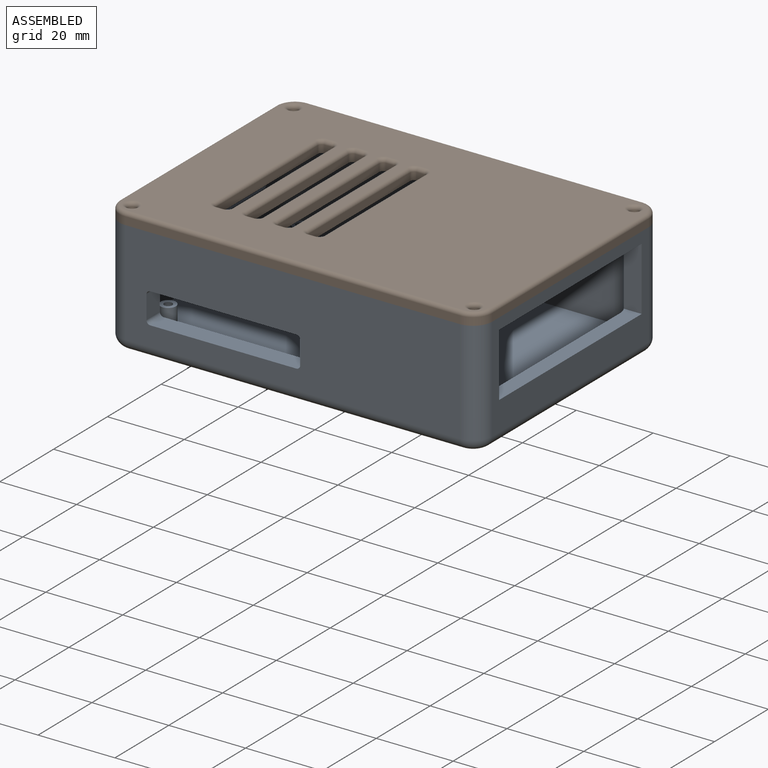
[diagram: assembled view]
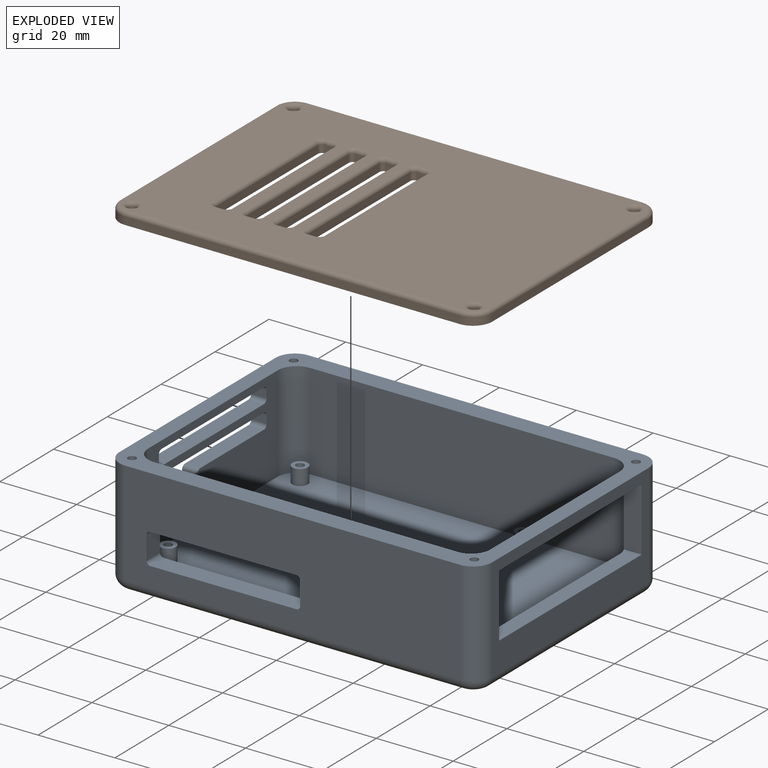
[diagram: exploded view]
GUIDED TOUR — FREECAD ASSEMBLY "Pi-Case"

This assembly has 2 components, labeled P0..P1 below (a component is one placed body or linked part; the same part can appear more than once), held together by 0 modeled joints plus 1 derived contact edge. A joint is a constraint between two components; its type names the relative motion it leaves free:
  CONTACT — a derived adjacency edge — the two components touch in the source model (clearance under 2% of the assembly's diagonal); it is measured from the geometry, not a modeled constraint.
Axis/direction vectors are unit vectors and 'through' points are millimeter coordinates, both in the assembly's world frame.

MATES
  1. CONTACT "contact_0_1": P0 <-> P1, contact direction (0.000, 0.000, 1.000) through (-44.95, -33.78, 30.00) mm (derived from contact, not a modeled constraint)

ASSEMBLY ORDER
  1. P1 — the base component [order verified]
  2. P0 [order verified]
Order-tag legend:
  [order verified] — this step's position reverses a verified removal order: the component was checked to insert without passing through the ones already placed.

Of the 2 components, 2 carry a construction recipe — the FreeCAD feature program (sketches with constraints, then the solid features that consume them) that regenerates the part from scratch, quoted from this document or from the linked companion document it references; the rest are supplied as boundary geometry only. The tour below walks the components in assembly order: each is shown spotlighted twice — in the assembled view, then in the exploded view, where a leader line traces a displaced component back to its assembled socket (components that stay in place when exploded have no leader line; saturated green if recipe-attached, orange if geometry-only; every other component desaturated gray) — followed by its recipe or geometry summary and the mates that hold it.
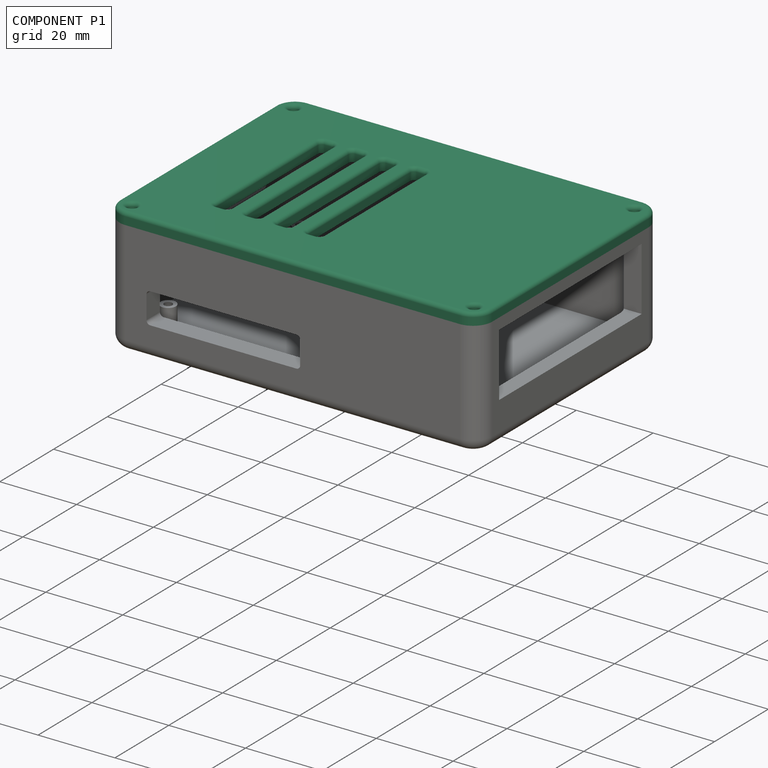
[diagram: component P1 — assembled]
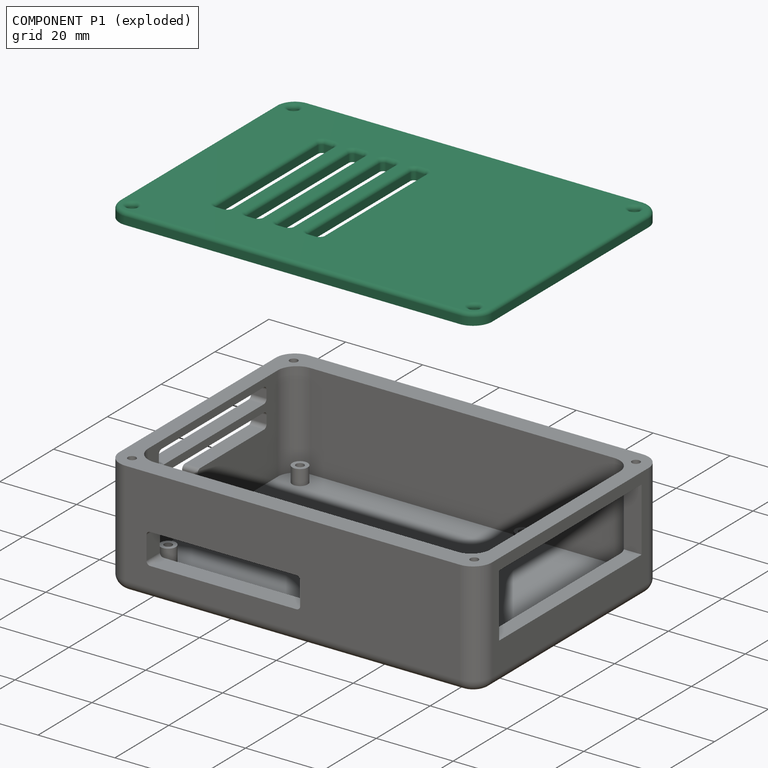
[diagram: component P1 — exploded]
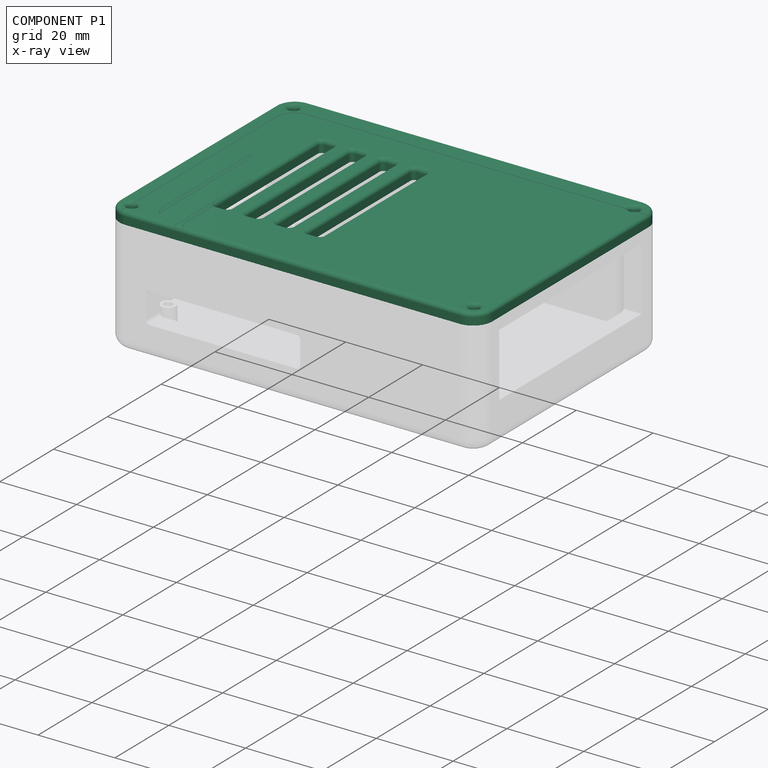
[diagram: component P1 — x-ray view]
COMPONENT P1 — recipe-attached ("Lid", modeled in this document).
Held by: resting contact with P0 (derived edge).
Construction recipe (the document's own serialized feature program — sketch geometry with constraints, then the solid features built on it; lengths are millimeters unless a unit is written):

FEATURE [Sketcher::SketchObject] Sketch010
  ArcFitTolerance = 1e-06
  AttachmentSupport = -> [XY_Plane004]
  FullyConstrained = false
  MakeInternals = false
  MapMode = 5
  sketch-geometry (11):
    g0: LineSegment StartX=-43.5 StartY=-34 StartZ=0 EndX=43.5 EndY=-34 EndZ=0
    g1: LineSegment StartX=48.5 StartY=-29 StartZ=0 EndX=48.5 EndY=29 EndZ=0
    g2: LineSegment StartX=43.5 StartY=34 StartZ=0 EndX=-43.5 EndY=34 EndZ=0
    g3: LineSegment StartX=-48.5 StartY=29 StartZ=0 EndX=-48.5 EndY=-29 EndZ=0
    g4: ArcOfCircle CenterX=-43.5 CenterY=-29 CenterZ=0 NormalX=0 NormalY=0 NormalZ=1 AngleXU=0 Radius=5 StartAngle=3.14159 EndAngle=4.71239
    g5: ArcOfCircle CenterX=43.5 CenterY=-29 CenterZ=0 NormalX=0 NormalY=0 NormalZ=1 AngleXU=0 Radius=5 StartAngle=4.71239 EndAngle=6.28319
    g6: ArcOfCircle CenterX=43.5 CenterY=29 CenterZ=0 NormalX=0 NormalY=0 NormalZ=1 AngleXU=0 Radius=5 StartAngle=4.5e-15 EndAngle=1.5708
    g7: ArcOfCircle CenterX=-43.5 CenterY=29 CenterZ=0 NormalX=0 NormalY=0 NormalZ=1 AngleXU=0 Radius=5 StartAngle=1.5708 EndAngle=3.14159
    g8: GeomPoint [constr] X=48.5 Y=34 Z=0
    g9: GeomPoint [constr] X=0 Y=0 Z=0
    g10: GeomPoint X=-43.8516 Y=-29.3405 Z=0
  constraints (22):
    c: Tangent(g0,g4) = -1.5708
    c: Tangent(g0,g5) = -1.5708
    c: Tangent(g1,g5) = -1.5708
    c: Tangent(g1,g6) = -1.5708
    c: Tangent(g2,g6) = -1.5708
    c: Tangent(g2,g7) = -1.5708
    c: Tangent(g3,g7) = -1.5708
    c: Tangent(g3,g4) = -1.5708
    c: Horizontal(g0)
    c: Horizontal(g2)
    c: Vertical(g1)
    c: Vertical(g3)
    c: Equal(g4,g5)
    c: Equal(g5,g6)
    c: Equal(g6,g7)
    c: Symmetric(g2,g0,g9)
    c: PointOnObject(g8,g1)
    c: PointOnObject(g8,g2)
    c: Distance(g1,g3) = 97
    c: Distance(g0,g2) = 68
    c: Radius(g5) = 5
    c: Coincident(g9,g-1)
FEATURE [PartDesign::Pad] Pad003
  Direction = (0,0,1)
  Length = 3
  Length2 = 10
  Profile = -> Sketch010
  ReferenceAxis = -> Sketch010 [N_Axis]
  Refine = true
  Suppressed = false
  Type = 0
FEATURE [Sketcher::SketchObject] Sketch012
  ArcFitTolerance = 1e-06
  FullyConstrained = true
  MakeInternals = false
  MapMode = 5
  Placement = pos=(0,0,3) rot=(0,0,1;0rad)
  sketch-geometry (49):
    g0: GeomPoint X=-44.5 Y=0 Z=0
    g1: LineSegment StartX=-29.5 StartY=-20 StartZ=0 EndX=-27.5 EndY=-20 EndZ=0
    g2: LineSegment StartX=-26.5 StartY=-19 StartZ=0 EndX=-26.5 EndY=19 EndZ=0
    g3: LineSegment StartX=-27.5 StartY=20 StartZ=0 EndX=-29.5 EndY=20 EndZ=0
    g4: LineSegment StartX=-30.5 StartY=19 StartZ=0 EndX=-30.5 EndY=-19 EndZ=0
    g5: ArcOfCircle CenterX=-29.5 CenterY=-19 CenterZ=0 NormalX=0 NormalY=0 NormalZ=1 AngleXU=0 Radius=1 StartAngle=3.14159 EndAngle=4.71239
    g6: ArcOfCircle CenterX=-27.5 CenterY=-19 CenterZ=0 NormalX=0 NormalY=0 NormalZ=1 AngleXU=0 Radius=1 StartAngle=4.71239 EndAngle=6.28319
    g7: ArcOfCircle CenterX=-27.5 CenterY=19 CenterZ=0 NormalX=0 NormalY=0 NormalZ=1 AngleXU=0 Radius=1 StartAngle=4e-16 EndAngle=1.5708
    g8: ArcOfCircle CenterX=-29.5 CenterY=19 CenterZ=0 NormalX=0 NormalY=0 NormalZ=1 AngleXU=0 Radius=1 StartAngle=1.5708 EndAngle=3.14159
    g9: GeomPoint [constr] X=-26.5 Y=20 Z=0
    g10: GeomPoint [constr] X=-28.5 Y=0 Z=0
    g11: GeomPoint X=-30.5 Y=6e-16 Z=0
    g12: LineSegment StartX=-21.5 StartY=-20 StartZ=0 EndX=-19.5 EndY=-20 EndZ=0
    g13: LineSegment StartX=-18.5 StartY=-19 StartZ=0 EndX=-18.5 EndY=19 EndZ=0
    g14: LineSegment StartX=-19.5 StartY=20 StartZ=0 EndX=-21.5 EndY=20 EndZ=0
    g15: LineSegment StartX=-22.5 StartY=19 StartZ=0 EndX=-22.5 EndY=-19 EndZ=0
    g16: ArcOfCircle CenterX=-21.5 CenterY=-19 CenterZ=0 NormalX=0 NormalY=0 NormalZ=1 AngleXU=0 Radius=1 StartAngle=3.14159 EndAngle=4.71239
    g17: ArcOfCircle CenterX=-19.5 CenterY=-19 CenterZ=0 NormalX=0 NormalY=0 NormalZ=1 AngleXU=0 Radius=1 StartAngle=4.71239 EndAngle=6.28319
    g18: ArcOfCircle CenterX=-19.5 CenterY=19 CenterZ=0 NormalX=0 NormalY=0 NormalZ=1 AngleXU=0 Radius=1 StartAngle=-9e-16 EndAngle=1.5708
    g19: ArcOfCircle CenterX=-21.5 CenterY=19 CenterZ=0 NormalX=0 NormalY=0 NormalZ=1 AngleXU=0 Radius=1 StartAngle=1.5708 EndAngle=3.14159
    g20: GeomPoint [constr] X=-18.5 Y=20 Z=0
    g21: GeomPoint [constr] X=-20.5 Y=0 Z=0
    g22: LineSegment StartX=-13.5 StartY=-20 StartZ=0 EndX=-11.5 EndY=-20 EndZ=0
    g23: LineSegment StartX=-10.5 StartY=-19 StartZ=0 EndX=-10.5 EndY=19 EndZ=0
    g24: LineSegment StartX=-11.5 StartY=20 StartZ=0 EndX=-13.5 EndY=20 EndZ=0
    g25: LineSegment StartX=-14.5 StartY=19 StartZ=0 EndX=-14.5 EndY=-19 EndZ=0
    g26: ArcOfCircle CenterX=-13.5 CenterY=-19 CenterZ=0 NormalX=0 NormalY=0 NormalZ=1 AngleXU=0 Radius=1 StartAngle=3.14159 EndAngle=4.71239
    g27: ArcOfCircle CenterX=-11.5 CenterY=-19 CenterZ=0 NormalX=0 NormalY=0 NormalZ=1 AngleXU=0 Radius=1 StartAngle=4.71239 EndAngle=6.28319
    g28: ArcOfCircle CenterX=-11.5 CenterY=19 CenterZ=0 NormalX=0 NormalY=0 NormalZ=1 AngleXU=0 Radius=1 StartAngle=0 EndAngle=1.5708
    g29: ArcOfCircle CenterX=-13.5 CenterY=19 CenterZ=0 NormalX=0 NormalY=0 NormalZ=1 AngleXU=0 Radius=1 StartAngle=1.5708 EndAngle=3.14159
    g30: GeomPoint [constr] X=-10.5 Y=20 Z=0
    g31: GeomPoint [constr] X=-12.5 Y=0 Z=0
    g32: GeomPoint X=-22.5 Y=3e-16 Z=0
    g33: GeomPoint X=-26.5 Y=1e-16 Z=0
    g34: GeomPoint X=-18.5 Y=5e-16 Z=0
    g35: GeomPoint X=-14.5 Y=-1e-16 Z=0
    g36: LineSegment StartX=-5.5 StartY=-20 StartZ=0 EndX=-3.5 EndY=-20 EndZ=0
    g37: LineSegment StartX=-2.5 StartY=-19 StartZ=0 EndX=-2.5 EndY=19 EndZ=0
    g38: LineSegment StartX=-3.5 StartY=20 StartZ=0 EndX=-5.5 EndY=20 EndZ=0
    g39: LineSegment StartX=-6.5 StartY=19 StartZ=0 EndX=-6.5 EndY=-19 EndZ=0
    g40: ArcOfCircle CenterX=-5.5 CenterY=-19 CenterZ=0 NormalX=0 NormalY=0 NormalZ=1 AngleXU=0 Radius=1 StartAngle=3.14159 EndAngle=4.71239
    g41: ArcOfCircle CenterX=-3.5 CenterY=-19 CenterZ=0 NormalX=0 NormalY=0 NormalZ=1 AngleXU=0 Radius=1 StartAngle=4.71239 EndAngle=6.28319
    g42: ArcOfCircle CenterX=-3.5 CenterY=19 CenterZ=0 NormalX=0 NormalY=0 NormalZ=1 AngleXU=0 Radius=1 StartAngle=0 EndAngle=1.5708
    g43: ArcOfCircle CenterX=-5.5 CenterY=19 CenterZ=0 NormalX=0 NormalY=0 NormalZ=1 AngleXU=0 Radius=1 StartAngle=1.5708 EndAngle=3.14159
    g44: GeomPoint [constr] X=-2.5 Y=20 Z=0
    g45: GeomPoint [constr] X=-4.5 Y=0 Z=0
    g46: GeomPoint X=-6.5 Y=-1.2e-15 Z=0
    g47: GeomPoint X=-10.5 Y=1.4e-15 Z=0
    g48: GeomPoint X=-2.5 Y=1.1e-15 Z=0
  constraints (101):
    c: Symmetric(g-3,g-3,g0)
    c: Tangent(g1,g5) = -1.5708
    c: Tangent(g1,g6) = -1.5708
    c: Tangent(g2,g6) = -1.5708
    c: Tangent(g2,g7) = -1.5708
    c: Tangent(g3,g7) = -1.5708
    c: Tangent(g3,g8) = -1.5708
    c: Tangent(g4,g8) = -1.5708
    c: Tangent(g4,g5) = -1.5708
    c: Horizontal(g1)
    c: Horizontal(g3)
    c: Vertical(g2)
    c: Vertical(g4)
    c: Equal(g5,g6)
    c: Equal(g6,g7)
    c: Equal(g7,g8)
    c: Symmetric(g3,g1,g10)
    c: PointOnObject(g9,g2)
    c: PointOnObject(g9,g3)
    c: Distance(g2,g4) = 4
    c: Distance(g1,g3) = 40
    c: Radius(g6) = 1
    c: PointOnObject(g10,g-1)
    c: Symmetric(g4,g4,g11)
    c: Tangent(g12,g16) = -1.5708
    c: Tangent(g12,g17) = -1.5708
    c: Tangent(g13,g17) = -1.5708
    c: Tangent(g13,g18) = -1.5708
    c: Tangent(g14,g18) = -1.5708
    c: Tangent(g14,g19) = -1.5708
    c: Tangent(g15,g19) = -1.5708
    c: Tangent(g15,g16) = -1.5708
    c: Horizontal(g12)
    c: Horizontal(g14)
    c: Vertical(g13)
    c: Vertical(g15)
    c: Equal(g16,g17)
    c: Equal(g17,g18)
    c: Equal(g18,g19)
    c: Symmetric(g14,g12,g21)
    c: PointOnObject(g20,g13)
    c: PointOnObject(g20,g14)
    c: Distance(g13,g15) = 4
    c: Distance(g12,g14) = 40
    c: Radius(g17) = 1
    c: PointOnObject(g21,g-1)
    c: Tangent(g22,g26) = -1.5708
    c: Tangent(g22,g27) = -1.5708
    c: Tangent(g23,g27) = -1.5708
    c: Tangent(g23,g28) = -1.5708
    c: Tangent(g24,g28) = -1.5708
    c: Tangent(g24,g29) = -1.5708
    c: Tangent(g25,g29) = -1.5708
    c: Tangent(g25,g26) = -1.5708
    c: Horizontal(g22)
    c: Horizontal(g24)
    c: Vertical(g23)
    c: Vertical(g25)
    c: Equal(g26,g27)
    c: Equal(g27,g28)
    c: Equal(g28,g29)
    c: Symmetric(g24,g22,g31)
    c: PointOnObject(g30,g23)
    c: PointOnObject(g30,g24)
    c: Distance(g23,g25) = 4
    c: Distance(g22,g24) = 40
    c: Radius(g27) = 1
    c: PointOnObject(g31,g-1)
    c: Symmetric(g15,g15,g32)
    c: Symmetric(g2,g2,g33)
    c: DistanceX(g33,g32) = 4
    c: Symmetric(g13,g13,g34)
    c: Symmetric(g25,g25,g35)
    c: DistanceX(g34,g35) = 4
    c: Tangent(g36,g40) = -1.5708
    c: Tangent(g36,g41) = -1.5708
    c: Tangent(g37,g41) = -1.5708
    c: Tangent(g37,g42) = -1.5708
    c: Tangent(g38,g42) = -1.5708
    c: Tangent(g38,g43) = -1.5708
    c: Tangent(g39,g43) = -1.5708
    c: Tangent(g39,g40) = -1.5708
    c: Horizontal(g36)
    c: Horizontal(g38)
    c: Vertical(g37)
    c: Vertical(g39)
    c: Equal(g40,g41)
    c: Equal(g41,g42)
    c: Equal(g42,g43)
    c: Symmetric(g38,g36,g45)
    c: PointOnObject(g44,g37)
    c: PointOnObject(g44,g38)
    c: Distance(g37,g39) = 4
    c: Distance(g36,g38) = 40
    c: Radius(g41) = 1
    c: PointOnObject(g45,g-1)
    c: Symmetric(g39,g39,g46)
    c: Symmetric(g23,g23,g47)
    c: DistanceX(g47,g46) = 4
    c: Symmetric(g37,g37,g48)
    c: DistanceX(g0,g11) = 14
FEATURE [PartDesign::Pocket] Pocket004
  BaseFeature = -> Pad003
  Direction = (0,0,-1)
  Length = 5
  Length2 = 5
  Profile = -> Sketch012
  ReferenceAxis = -> Sketch012 [N_Axis]
  Refine = true
  Suppressed = false
  Type = 0
FEATURE [Sketcher::SketchObject] Sketch014
  ArcFitTolerance = 1e-06
  AttachmentSupport = -> [Pocket004]
  ExternalGeometry = -> [Pocket004]
  FullyConstrained = false
  MakeInternals = false
  MapMode = 5
  Placement = pos=(0,0,0) rot=(1,0,0;3.14159rad)
  sketch-geometry (6):
    g0: GeomPoint [constr] X=43.5 Y=29 Z=0
    g1: GeomPoint [constr] X=0 Y=0 Z=0
    g2: Circle CenterX=-44.5356 CenterY=-30.0354 CenterZ=0 NormalX=0 NormalY=0 NormalZ=1 AngleXU=0 Radius=1.2
    g3: Circle CenterX=44.198 CenterY=-29.9761 CenterZ=0 NormalX=0 NormalY=0 NormalZ=1 AngleXU=0 Radius=1.2
    g4: Circle CenterX=44.5354 CenterY=30.0357 CenterZ=0 NormalX=0 NormalY=0 NormalZ=1 AngleXU=0 Radius=1.2
    g5: Circle CenterX=-44.5354 CenterY=30.0356 CenterZ=0 NormalX=0 NormalY=0 NormalZ=1 AngleXU=0 Radius=1.2
  constraints (6):
    c: Coincident(g1,g-1)
    c: Diameter(g2) = 2.4
    c: Diameter(g3) = 2.4
    c: PointOnObject(g-3,g3)
    c: Diameter(g4) = 2.4
    c: Diameter(g5) = 2.4
FEATURE [PartDesign::Hole] Hole002
  BaseFeature = -> Pocket004
  CustomThreadClearance = 0
  Depth = 25
  DepthType = 0
  Diameter = 2.4
  DrillForDepth = false
  DrillPoint = 1
  DrillPointAngle = 118
  HoleCutCountersinkAngle = 90
  HoleCutCustomValues = false
  HoleCutDepth = 0
  HoleCutDiameter = 6.1
  HoleCutType = 0
  ModelThread = false
  Profile = -> Sketch014
  Refine = true
  Suppressed = false
  Tapered = false
  TaperedAngle = 90
  ThreadClass = 0
  ThreadDepth = 25
  ThreadDepthType = 0
  ThreadDirection = 0
  ThreadFit = 0
  ThreadSize = 6
  ThreadType = 1
  Threaded = false
  UseCustomThreadClearance = false
FEATURE [PartDesign::Fillet] Fillet001
  Base = -> Hole002 [Face5]
  BaseFeature = -> Hole002
  Radius = 1
  Refine = true
  SupportTransform = false
  Suppressed = false
  UseAllEdges = false
FEATURE [PartDesign::Body] Body001  label="Lid"
  AllowCompound = false
  Group = -> [Sketch010,Pad003,Sketch012,Pocket004,Sketch014,Hole002,Fillet001]
  Origin = -> Origin004
  Placement = pos=(0,0,30) rot=(0,0,1;0rad)
  Tip = -> Fillet001
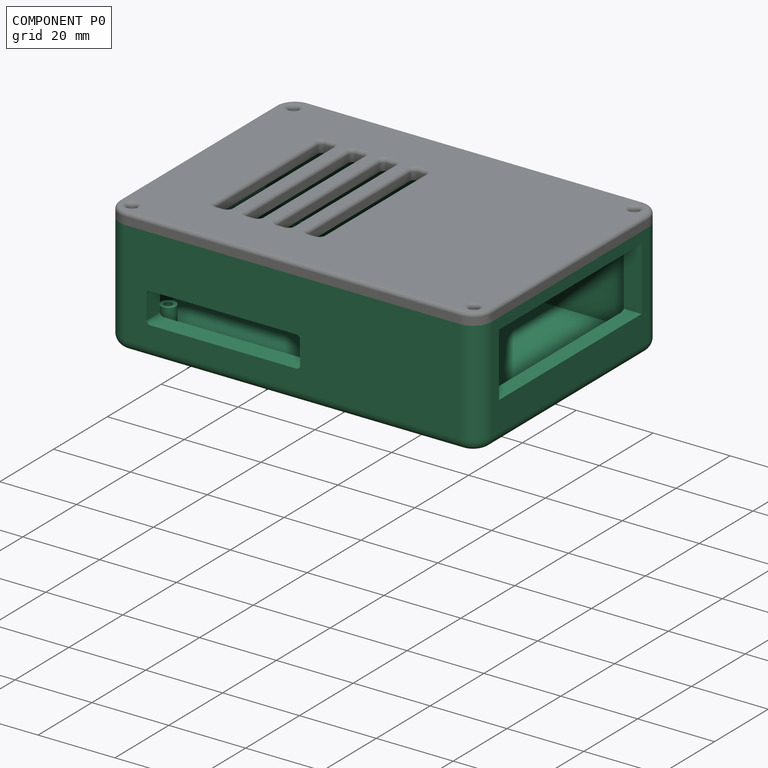
[diagram: component P0 — assembled]
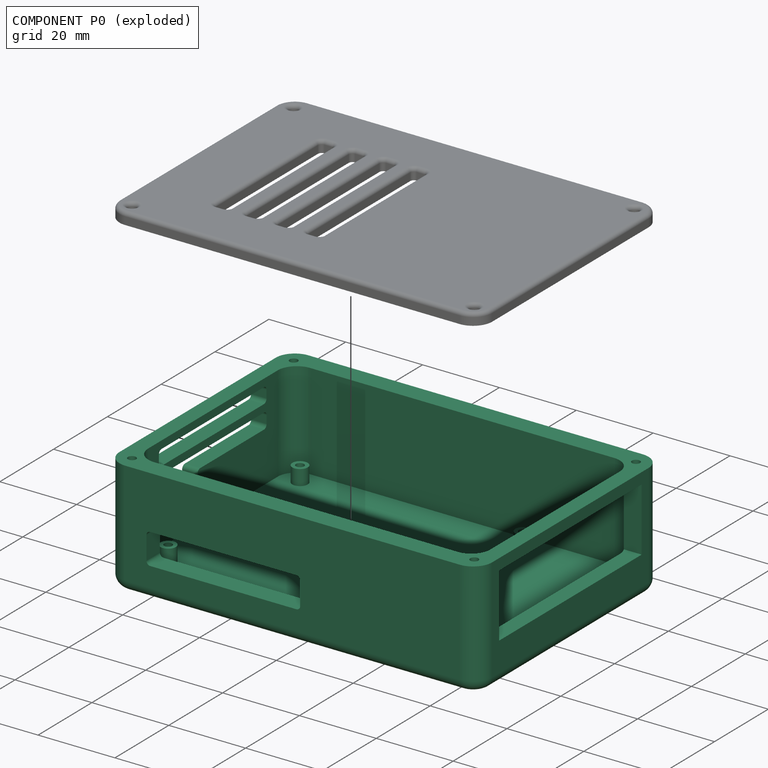
[diagram: component P0 — exploded]
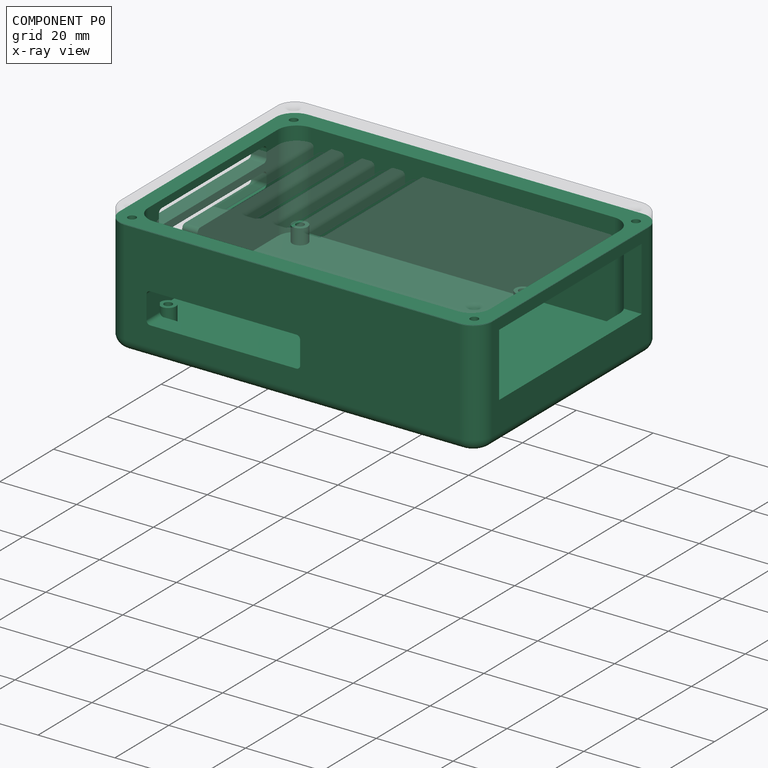
[diagram: component P0 — x-ray view]
COMPONENT P0 — recipe-attached ("Body", modeled in this document).
Held by: resting contact with P1 (derived edge).
Construction recipe (the document's own serialized feature program — sketch geometry with constraints, then the solid features built on it; lengths are millimeters unless a unit is written):

FEATURE [Sketcher::SketchObject] Sketch
  ArcFitTolerance = 1e-06
  AttachmentSupport = -> [XY_Plane002]
  FullyConstrained = true
  MakeInternals = false
  MapMode = 5
  sketch-geometry (10):
    g0: LineSegment StartX=-43.5 StartY=-34 StartZ=0 EndX=43.5 EndY=-34 EndZ=0
    g1: LineSegment StartX=48.5 StartY=-29 StartZ=0 EndX=48.5 EndY=29 EndZ=0
    g2: LineSegment StartX=43.5 StartY=34 StartZ=0 EndX=-43.5 EndY=34 EndZ=0
    g3: LineSegment StartX=-48.5 StartY=29 StartZ=0 EndX=-48.5 EndY=-29 EndZ=0
    g4: ArcOfCircle CenterX=-43.5 CenterY=-29 CenterZ=0 NormalX=0 NormalY=0 NormalZ=1 AngleXU=0 Radius=5 StartAngle=3.14159 EndAngle=4.71239
    g5: ArcOfCircle CenterX=43.5 CenterY=-29 CenterZ=0 NormalX=0 NormalY=0 NormalZ=1 AngleXU=0 Radius=5 StartAngle=4.71239 EndAngle=6.28319
    g6: ArcOfCircle CenterX=43.5 CenterY=29 CenterZ=0 NormalX=0 NormalY=0 NormalZ=1 AngleXU=0 Radius=5 StartAngle=4.3e-15 EndAngle=1.5708
    g7: ArcOfCircle CenterX=-43.5 CenterY=29 CenterZ=0 NormalX=0 NormalY=0 NormalZ=1 AngleXU=0 Radius=5 StartAngle=1.5708 EndAngle=3.14159
    g8: GeomPoint [constr] X=48.5 Y=34 Z=0
    g9: GeomPoint [constr] X=0 Y=0 Z=0
  constraints (22):
    c: Tangent(g0,g4) = -1.5708
    c: Tangent(g0,g5) = -1.5708
    c: Tangent(g1,g5) = -1.5708
    c: Tangent(g1,g6) = -1.5708
    c: Tangent(g2,g6) = -1.5708
    c: Tangent(g2,g7) = -1.5708
    c: Tangent(g3,g7) = -1.5708
    c: Tangent(g3,g4) = -1.5708
    c: Horizontal(g0)
    c: Horizontal(g2)
    c: Vertical(g1)
    c: Vertical(g3)
    c: Equal(g4,g5)
    c: Equal(g5,g6)
    c: Equal(g6,g7)
    c: Symmetric(g2,g0,g9)
    c: PointOnObject(g8,g1)
    c: PointOnObject(g8,g2)
    c: Distance(g1,g3) = 97
    c: Distance(g0,g2) = 68
    c: Radius(g5) = 5
    c: Coincident(g9,g-1)
FEATURE [PartDesign::Pad] Pad  label="Base"
  Direction = (0,0,1)
  Length = 5
  Length2 = 10
  Profile = -> Sketch
  ReferenceAxis = -> Sketch [N_Axis]
  Refine = true
  Suppressed = false
  Type = 0
FEATURE [PartDesign::Fillet] Fillet
  Base = -> Pad [Face9]
  BaseFeature = -> Pad
  Radius = 3
  Refine = true
  SupportTransform = false
  Suppressed = false
  UseAllEdges = false
FEATURE [Sketcher::SketchObject] Sketch001
  ArcFitTolerance = 1e-06
  AttachmentSupport = -> [Fillet]
  FullyConstrained = false
  MakeInternals = false
  MapMode = 5
  Placement = pos=(0,0,5) rot=(0,0,1;0rad)
  sketch-geometry (4):
    g0: Circle CenterX=18.9912 CenterY=24.5 CenterZ=0 NormalX=0 NormalY=0 NormalZ=1 AngleXU=0 Radius=2
    g1: Circle CenterX=18.9912 CenterY=-24.5 CenterZ=0 NormalX=0 NormalY=0 NormalZ=1 AngleXU=0 Radius=2
    g2: Circle CenterX=-39.0088 CenterY=-24.5 CenterZ=0 NormalX=0 NormalY=0 NormalZ=1 AngleXU=0 Radius=2
    g3: Circle CenterX=-39.0088 CenterY=24.5 CenterZ=0 NormalX=0 NormalY=0 NormalZ=1 AngleXU=0 Radius=2
  constraints (9):
    c: Diameter(g0) = 4
    c: Diameter(g1) = 4
    c: Diameter(g2) = 4
    c: Diameter(g3) = 4
    c: Symmetric(g3,g2,g-1)
    c: Symmetric(g1,g0,g-1)
    c: DistanceX(g3,g0) = 58
    c: DistanceY(g1,g0) = 49
    c: DistanceY(g2,g3) = 49
FEATURE [Sketcher::SketchObject] Sketch002
  ArcFitTolerance = 1e-06
  AttachmentSupport = -> [Fillet]
  FullyConstrained = true
  MakeInternals = false
  MapMode = 5
  Placement = pos=(0,0,5) rot=(0,0,1;0rad)
  sketch-geometry (20):
    g0: LineSegment StartX=-43.5 StartY=-34 StartZ=0 EndX=43.5 EndY=-34 EndZ=0
    g1: LineSegment StartX=48.5 StartY=-29 StartZ=0 EndX=48.5 EndY=29 EndZ=0
    g2: LineSegment StartX=43.5 StartY=34 StartZ=0 EndX=-43.5 EndY=34 EndZ=0
    g3: LineSegment StartX=-48.5 StartY=29 StartZ=0 EndX=-48.5 EndY=-29 EndZ=0
    g4: ArcOfCircle CenterX=-43.5 CenterY=-29 CenterZ=0 NormalX=0 NormalY=0 NormalZ=1 AngleXU=0 Radius=5 StartAngle=3.14159 EndAngle=4.71239
    g5: ArcOfCircle CenterX=43.5 CenterY=-29 CenterZ=0 NormalX=0 NormalY=0 NormalZ=1 AngleXU=0 Radius=5 StartAngle=4.71239 EndAngle=6.28319
    g6: ArcOfCircle CenterX=43.5 CenterY=29 CenterZ=0 NormalX=0 NormalY=0 NormalZ=1 AngleXU=0 Radius=5 StartAngle=0 EndAngle=1.5708
    g7: ArcOfCircle CenterX=-43.5 CenterY=29 CenterZ=0 NormalX=0 NormalY=0 NormalZ=1 AngleXU=0 Radius=5 StartAngle=1.5708 EndAngle=3.14159
    g8: GeomPoint [constr] X=48.5 Y=34 Z=0
    g9: GeomPoint [constr] X=0 Y=0 Z=0
    g10: LineSegment StartX=-39.5 StartY=-29 StartZ=0 EndX=39.5 EndY=-29 EndZ=0
    g11: LineSegment StartX=44.5 StartY=-24 StartZ=0 EndX=44.5 EndY=24 EndZ=0
    g12: LineSegment StartX=39.5 StartY=29 StartZ=0 EndX=-39.5 EndY=29 EndZ=0
    g13: LineSegment StartX=-44.5 StartY=24 StartZ=0 EndX=-44.5 EndY=-24 EndZ=0
    g14: ArcOfCircle CenterX=-39.5 CenterY=-24 CenterZ=0 NormalX=0 NormalY=0 NormalZ=1 AngleXU=0 Radius=5 StartAngle=3.14159 EndAngle=4.71239
    g15: ArcOfCircle CenterX=39.5 CenterY=-24 CenterZ=0 NormalX=0 NormalY=0 NormalZ=1 AngleXU=0 Radius=5 StartAngle=4.71239 EndAngle=6.28319
    g16: ArcOfCircle CenterX=39.5 CenterY=24 CenterZ=0 NormalX=0 NormalY=0 NormalZ=1 AngleXU=0 Radius=5 StartAngle=-9e-16 EndAngle=1.5708
    g17: ArcOfCircle CenterX=-39.5 CenterY=24 CenterZ=0 NormalX=0 NormalY=0 NormalZ=1 AngleXU=0 Radius=5 StartAngle=1.5708 EndAngle=3.14159
    g18: GeomPoint [constr] X=44.5 Y=29 Z=0
    g19: GeomPoint [constr] X=0 Y=0 Z=0
  constraints (44):
    c: Tangent(g0,g4) = -1.5708
    c: Tangent(g0,g5) = -1.5708
    c: Tangent(g1,g5) = -1.5708
    c: Tangent(g1,g6) = -1.5708
    c: Tangent(g2,g6) = -1.5708
    c: Tangent(g2,g7) = -1.5708
    c: Tangent(g3,g7) = -1.5708
    c: Tangent(g3,g4) = -1.5708
    c: Horizontal(g0)
    c: Horizontal(g2)
    c: Vertical(g1)
    c: Vertical(g3)
    c: Equal(g4,g5)
    c: Equal(g5,g6)
    c: Equal(g6,g7)
    c: Symmetric(g2,g0,g9)
    c: PointOnObject(g8,g1)
    c: PointOnObject(g8,g2)
    c: Distance(g1,g3) = 97
    c: Distance(g0,g2) = 68
    c: Radius(g5) = 5
    c: Coincident(g9,g-1)
    c: Tangent(g10,g14) = -1.5708
    c: Tangent(g10,g15) = -1.5708
    c: Tangent(g11,g15) = -1.5708
    c: Tangent(g11,g16) = -1.5708
    c: Tangent(g12,g16) = -1.5708
    c: Tangent(g12,g17) = -1.5708
    c: Tangent(g13,g17) = -1.5708
    c: Tangent(g13,g14) = -1.5708
    c: Horizontal(g10)
    c: Horizontal(g12)
    c: Vertical(g11)
    c: Vertical(g13)
    c: Equal(g14,g15)
    c: Equal(g15,g16)
    c: Equal(g16,g17)
    c: Symmetric(g12,g10,g19)
    c: PointOnObject(g18,g11)
    c: PointOnObject(g18,g12)
    c: Distance(g11,g13) = 89
    c: Distance(g10,g12) = 58
    c: Radius(g15) = 5
    c: Coincident(g19,g9)
FEATURE [PartDesign::Pad] Pad001  label="Walls"
  BaseFeature = -> Fillet
  Direction = (0,0,1)
  Length = 25
  Length2 = 10
  Profile = -> Sketch002
  ReferenceAxis = -> Sketch002 [N_Axis]
  Refine = true
  Suppressed = false
  Type = 0
FEATURE [Sketcher::SketchObject] Sketch003
  ArcFitTolerance = 1e-06
  AttachmentSupport = -> [Pad001]
  FullyConstrained = true
  MakeInternals = false
  MapMode = 5
  Placement = pos=(48.5,0,0) rot=(0.57735,0.57735,0.57735;2.0944rad)
  sketch-geometry (5):
    g0: LineSegment StartX=-26.5 StartY=10.6 StartZ=0 EndX=26.5 EndY=10.6 EndZ=0
    g1: LineSegment StartX=26.5 StartY=10.6 StartZ=0 EndX=26.5 EndY=27.1 EndZ=0
    g2: LineSegment StartX=26.5 StartY=27.1 StartZ=0 EndX=-26.5 EndY=27.1 EndZ=0
    g3: LineSegment StartX=-26.5 StartY=27.1 StartZ=0 EndX=-26.5 EndY=10.6 EndZ=0
    g4: GeomPoint [constr] X=0 Y=18.85 Z=0
  constraints (13):
    c: Coincident(g0,g1)
    c: Coincident(g1,g2)
    c: Coincident(g2,g3)
    c: Coincident(g3,g0)
    c: Horizontal(g0)
    c: Horizontal(g2)
    c: Vertical(g1)
    c: Vertical(g3)
    c: Symmetric(g2,g0,g4)
    c: Distance(g1,g3) = 53
    c: Distance(g0,g2) = 16.5
    c: PointOnObject(g4,g-2)
    c: DistanceY(g-1,g4) = 18.85
FEATURE [PartDesign::Pocket] Pocket  label="Back Ports"
  BaseFeature = -> Pad001
  Direction = (-1,0,0)
  Length = 5
  Length2 = 5
  Profile = -> Sketch003
  ReferenceAxis = -> Sketch003 [N_Axis]
  Refine = true
  Suppressed = false
  Type = 0
FEATURE [PartDesign::Pad] Pad002  label="Stilts"
  BaseFeature = -> Pocket
  Direction = (0,0,1)
  Length = 4
  Length2 = 10
  Profile = -> Sketch001
  ReferenceAxis = -> Sketch001 [N_Axis]
  Refine = true
  Suppressed = false
  Type = 0
FEATURE [Sketcher::SketchObject] Sketch004
  ArcFitTolerance = 1e-06
  AttachmentSupport = -> [Pad002]
  ExternalGeometry = -> [Pad002]
  FullyConstrained = true
  MakeInternals = false
  MapMode = 5
  Placement = pos=(0,0,9) rot=(0,0,1;0rad)
  sketch-geometry (4):
    g0: Circle CenterX=-39.0088 CenterY=24.5 CenterZ=0 NormalX=0 NormalY=0 NormalZ=1 AngleXU=0 Radius=0.75
    g1: Circle CenterX=18.9912 CenterY=24.5 CenterZ=0 NormalX=0 NormalY=0 NormalZ=1 AngleXU=0 Radius=0.75
    g2: Circle CenterX=18.9912 CenterY=-24.5 CenterZ=0 NormalX=0 NormalY=0 NormalZ=1 AngleXU=0 Radius=0.75
    g3: Circle CenterX=-39.0088 CenterY=-24.5 CenterZ=0 NormalX=0 NormalY=0 NormalZ=1 AngleXU=0 Radius=0.75
  constraints (8):
    c: Diameter(g0) = 1.5
    c: Coincident(g0,g-3)
    c: Diameter(g1) = 1.5
    c: Coincident(g1,g-4)
    c: Diameter(g2) = 1.5
    c: Coincident(g2,g-5)
    c: Diameter(g3) = 1.5
    c: Coincident(g3,g-6)
FEATURE [PartDesign::Hole] Hole  label="Board Holes"
  BaseFeature = -> Pad002
  CustomThreadClearance = 0
  Depth = 6
  DepthType = 0
  Diameter = 2.1
  DrillForDepth = false
  DrillPoint = 1
  DrillPointAngle = 118
  HoleCutCountersinkAngle = 90
  HoleCutCustomValues = false
  HoleCutDepth = 0
  HoleCutDiameter = 6.1
  HoleCutType = 0
  ModelThread = false
  Profile = -> Sketch004
  Refine = true
  Suppressed = false
  Tapered = false
  TaperedAngle = 90
  ThreadClass = 0
  ThreadDepth = 6
  ThreadDepthType = 0
  ThreadDirection = 0
  ThreadFit = 0
  ThreadSize = 0
  ThreadType = 0
  Threaded = false
  UseCustomThreadClearance = false
FEATURE [Sketcher::SketchObject] Sketch005
  ArcFitTolerance = 1e-06
  AttachmentSupport = -> [Hole]
  ExternalGeometry = -> [Hole]
  FullyConstrained = false
  MakeInternals = false
  MapMode = 5
  Placement = pos=(0,0,30) rot=(0,0,1;0rad)
  sketch-geometry (4):
    g0: Circle CenterX=-44.5355 CenterY=-30.0355 CenterZ=0 NormalX=0 NormalY=0 NormalZ=1 AngleXU=0 Radius=1.05
    g1: Circle CenterX=44.5345 CenterY=-30.0345 CenterZ=0 NormalX=0 NormalY=0 NormalZ=1 AngleXU=0 Radius=1.05
    g2: Circle CenterX=44.5355 CenterY=30.0355 CenterZ=0 NormalX=0 NormalY=0 NormalZ=1 AngleXU=0 Radius=1.05
    g3: Circle CenterX=-44.5355 CenterY=30.0355 CenterZ=0 NormalX=0 NormalY=0 NormalZ=1 AngleXU=0 Radius=1.05
  constraints (6):
    c: Diameter(g0) = 2.1
    c: Diameter(g1) = 2.1
    c: Diameter(g2) = 2.1
    c: Diameter(g3) = 2.1
    c: DistanceX(g0,g1) = 89.07
    c: DistanceY(g1,g2) = 60.07
FEATURE [Sketcher::SketchObject] Sketch006
  ArcFitTolerance = 1e-06
  AttachmentSupport = -> [Hole]
  FullyConstrained = false
  MakeInternals = false
  MapMode = 5
  Placement = pos=(-48.5,0,0) rot=(0.57735,-0.57735,-0.57735;2.0944rad)
  sketch-geometry (11):
    g0: LineSegment StartX=-5 StartY=-0.312917 StartZ=0 EndX=5 EndY=-0.312917 EndZ=0
    g1: LineSegment StartX=6 StartY=0.687083 StartZ=0 EndX=6 EndY=8.68708 EndZ=0
    g2: LineSegment StartX=5 StartY=9.68708 StartZ=0 EndX=-5 EndY=9.68708 EndZ=0
    g3: LineSegment StartX=-6 StartY=8.68708 StartZ=0 EndX=-6 EndY=0.687083 EndZ=0
    g4: ArcOfCircle CenterX=-5 CenterY=0.687083 CenterZ=0 NormalX=0 NormalY=0 NormalZ=1 AngleXU=0 Radius=1 StartAngle=3.14159 EndAngle=4.71239
    g5: ArcOfCircle CenterX=5 CenterY=0.687083 CenterZ=0 NormalX=0 NormalY=0 NormalZ=1 AngleXU=0 Radius=1 StartAngle=4.71239 EndAngle=6.28319
    g6: ArcOfCircle CenterX=5 CenterY=8.68708 CenterZ=0 NormalX=0 NormalY=0 NormalZ=1 AngleXU=0 Radius=1 StartAngle=1e-16 EndAngle=1.5708
    g7: ArcOfCircle CenterX=-5 CenterY=8.68708 CenterZ=0 NormalX=0 NormalY=0 NormalZ=1 AngleXU=0 Radius=1 StartAngle=1.5708 EndAngle=3.14159
    g8: GeomPoint [constr] X=6 Y=9.68708 Z=0
    g9: GeomPoint [constr] X=0 Y=5.00565 Z=0
    g10: GeomPoint [constr] X=5 Y=9.68708 Z=0
  constraints (22):
    c: Tangent(g0,g4) = -1.5708
    c: Tangent(g0,g5) = -1.5708
    c: Tangent(g1,g5) = -1.5708
    c: Tangent(g1,g6) = -1.5708
    c: Tangent(g2,g6) = -1.5708
    c: Tangent(g2,g7) = -1.5708
    c: Tangent(g3,g7) = -1.5708
    c: Tangent(g3,g4) = -1.5708
    c: Horizontal(g0)
    c: Horizontal(g2)
    c: Vertical(g1)
    c: Vertical(g3)
    c: Equal(g5,g6)
    c: Equal(g6,g7)
    c: PointOnObject(g8,g1)
    c: PointOnObject(g8,g2)
    c: Distance(g1,g3) = 12
    c: Distance(g0,g2) = 10
    c: Radius(g5) = 1
    c: PointOnObject(g9,g-2)
    c: Symmetric(g5,g4,g-2)
    c: Coincident(g10,g2)
FEATURE [PartDesign::Pocket] Pocket001  label="SD Card Pocket"
  BaseFeature = -> Hole
  Direction = (1,0,0)
  Length = 10
  Length2 = 5
  Profile = -> Sketch006
  ReferenceAxis = -> Sketch006 [N_Axis]
  Refine = true
  Suppressed = false
  Type = 0
FEATURE [Sketcher::SketchObject] Sketch007
  ArcFitTolerance = 1e-06
  AttachmentSupport = -> [Pocket001]
  ExternalGeometry = -> [Pocket001]
  FullyConstrained = false
  MakeInternals = false
  MapMode = 5
  Placement = pos=(-48.5,0,0) rot=(0.57735,-0.57735,-0.57735;2.0944rad)
  sketch-geometry (37):
    g0: LineSegment StartX=20.0788 StartY=18.9948 StartZ=0 EndX=20.0788 EndY=21 EndZ=0
    g1: LineSegment StartX=19.0788 StartY=22 StartZ=0 EndX=-18.9212 EndY=22 EndZ=0
    g2: LineSegment StartX=-19.9212 StartY=21 StartZ=0 EndX=-19.9212 EndY=18.9912 EndZ=0
    g3: ArcOfCircle CenterX=-18.9212 CenterY=18.9912 CenterZ=0 NormalX=0 NormalY=0 NormalZ=1 AngleXU=0 Radius=1 StartAngle=3.14159 EndAngle=4.55954
    g4: ArcOfCircle CenterX=19.0788 CenterY=18.9948 CenterZ=0 NormalX=0 NormalY=0 NormalZ=1 AngleXU=0 Radius=1 StartAngle=4.7111 EndAngle=6.28319
    g5: ArcOfCircle CenterX=19.0788 CenterY=21 CenterZ=0 NormalX=0 NormalY=0 NormalZ=1 AngleXU=0 Radius=1 StartAngle=1.3e-15 EndAngle=1.5708
    g6: ArcOfCircle CenterX=-18.9212 CenterY=21 CenterZ=0 NormalX=0 NormalY=0 NormalZ=1 AngleXU=0 Radius=1 StartAngle=1.5708 EndAngle=3.14159
    g7: GeomPoint [constr] X=20.0788 Y=22 Z=0
    g8: GeomPoint [constr] X=0.00265967 Y=20.0014 Z=0
    g9: LineSegment StartX=-18.8903 StartY=24 StartZ=0 EndX=19.1097 EndY=24 EndZ=0
    g10: LineSegment StartX=20.1097 StartY=25 StartZ=0 EndX=20.1097 EndY=27 EndZ=0
    g11: LineSegment StartX=19.1097 StartY=28 StartZ=0 EndX=-18.8903 EndY=28 EndZ=0
    g12: LineSegment StartX=-19.8903 StartY=27 StartZ=0 EndX=-19.8903 EndY=25 EndZ=0
    g13: ArcOfCircle CenterX=-18.8903 CenterY=25 CenterZ=0 NormalX=0 NormalY=0 NormalZ=1 AngleXU=0 Radius=1 StartAngle=3.14159 EndAngle=4.71239
    g14: ArcOfCircle CenterX=19.1097 CenterY=25 CenterZ=0 NormalX=0 NormalY=0 NormalZ=1 AngleXU=0 Radius=1 StartAngle=4.71239 EndAngle=6.28319
    g15: ArcOfCircle CenterX=19.1097 CenterY=27 CenterZ=0 NormalX=0 NormalY=0 NormalZ=1 AngleXU=0 Radius=1 StartAngle=1.1e-15 EndAngle=1.5708
    g16: ArcOfCircle CenterX=-18.8903 CenterY=27 CenterZ=0 NormalX=0 NormalY=0 NormalZ=1 AngleXU=0 Radius=1 StartAngle=1.5708 EndAngle=3.14159
    g17: GeomPoint [constr] X=20.1097 Y=28 Z=0
    g18: GeomPoint [constr] X=0.109708 Y=26 Z=0
    g19: GeomPoint X=24.15 Y=9 Z=0
    g20: LineSegment StartX=19.0775 StartY=17.9948 StartZ=0 EndX=13.7513 EndY=18.0016 EndZ=0
    g21: LineSegment StartX=12.75 StartY=17.0016 StartZ=0 EndX=12.75 EndY=12.0029 EndZ=0
    g22: LineSegment StartX=11.75 StartY=11.0029 StartZ=0 EndX=6.75 EndY=11.0029 EndZ=0
    g23: LineSegment StartX=5.75 StartY=12.0029 StartZ=0 EndX=5.75 EndY=17.0029 EndZ=0
    g24: LineSegment StartX=4.75 StartY=18.0029 StartZ=0 EndX=-19.0735 EndY=18.0029 EndZ=0
    g25: GeomPoint X=9.25 Y=11.0029 Z=0
    g26: GeomPoint X=9.25 Y=18.0029 Z=0
    g27: ArcOfCircle CenterX=6.75 CenterY=12.0029 CenterZ=0 NormalX=0 NormalY=0 NormalZ=1 AngleXU=0 Radius=1 StartAngle=3.14159 EndAngle=4.71239
    g28: GeomPoint [constr] X=5.75 Y=11.0029 Z=0
    g29: ArcOfCircle CenterX=11.75 CenterY=12.0029 CenterZ=0 NormalX=0 NormalY=0 NormalZ=1 AngleXU=0 Radius=1 StartAngle=4.71239 EndAngle=6.28319
    g30: GeomPoint [constr] X=12.75 Y=11.0029 Z=0
    g31: GeomPoint X=9.25 Y=9 Z=0
    g32: ArcOfCircle CenterX=13.75 CenterY=17.0016 CenterZ=0 NormalX=0 NormalY=0 NormalZ=1 AngleXU=0 Radius=1 StartAngle=1.56951 EndAngle=3.14159
    g33: GeomPoint [constr] X=12.75 Y=18.0029 Z=0
    g34: ArcOfCircle CenterX=4.75 CenterY=17.0029 CenterZ=0 NormalX=0 NormalY=0 NormalZ=1 AngleXU=0 Radius=1 StartAngle=5e-16 EndAngle=1.5708
    g35: GeomPoint [constr] X=5.75 Y=18.0029 Z=0
    g36: GeomPoint X=0 Y=30 Z=0
  constraints (78):
    c: Tangent(g0,g4) = -1.5708
    c: Tangent(g0,g5) = -1.5708
    c: Tangent(g1,g5) = -1.5708
    c: Tangent(g1,g6) = -1.5708
    c: Tangent(g2,g6) = -1.5708
    c: Tangent(g2,g3) = -1.5708
    c: Horizontal(g1)
    c: Vertical(g0)
    c: Vertical(g2)
    c: Equal(g3,g4)
    c: Equal(g4,g5)
    c: Equal(g5,g6)
    c: Symmetric(g1,g3,g8)
    c: PointOnObject(g7,g0)
    c: PointOnObject(g7,g1)
    c: Distance(g0,g2) = 40
    c: Distance(g3,g1) = 4
    c: Radius(g4) = 1
    c: Tangent(g9,g13) = -1.5708
    c: Tangent(g9,g14) = -1.5708
    c: Tangent(g10,g14) = -1.5708
    c: Tangent(g10,g15) = -1.5708
    c: Tangent(g11,g15) = -1.5708
    c: Tangent(g11,g16) = -1.5708
    c: Tangent(g12,g16) = -1.5708
    c: Tangent(g12,g13) = -1.5708
    c: Horizontal(g9)
    c: Horizontal(g11)
    c: Vertical(g10)
    c: Vertical(g12)
    c: Equal(g13,g14)
    c: Equal(g14,g15)
    c: Equal(g15,g16)
    c: Symmetric(g11,g9,g18)
    c: PointOnObject(g17,g10)
    c: PointOnObject(g17,g11)
    c: Distance(g10,g12) = 40
    c: Distance(g9,g11) = 4
    c: Radius(g14) = 1
    c: Tangent(g4,g20) = 1.5708
    c: Vertical(g21)
    c: Horizontal(g22)
    c: Vertical(g23)
    c: Coincident(g24,g3)
    c: Horizontal(g24)
    c: Symmetric(g28,g30,g25)
    c: Symmetric(g35,g33,g26)
    c: DistanceY(g35,g26) = 0
    c: DistanceX(g28,g30) = 7
    c: DistanceY(g28,g35) = 7
    c: PointOnObject(g28,g23)
    c: PointOnObject(g28,g22)
    c: Tangent(g23,g27) = 1.5708
    c: Tangent(g22,g27) = 1.5708
    c: PointOnObject(g30,g22)
    c: PointOnObject(g30,g21)
    c: Tangent(g22,g29) = 1.5708
    c: Tangent(g21,g29) = 1.5708
    c: Radius(g27) = 1
    c: DistanceX(g31,g25) = 0
    c: DistanceY(g31,g19) = 0
    c: DistanceY(g19,g-6) = 0
    c: Radius(g29) = 1
    c: DistanceX(g-6,g19) = 0.7
    c: PointOnObject(g33,g21)
    c: PointOnObject(g33,g20)
    c: Tangent(g21,g32) = -1.5708
    c: Tangent(g20,g32) = -1.5708
    c: PointOnObject(g35,g23)
    c: PointOnObject(g35,g24)
    c: Tangent(g23,g34) = -1.5708
    c: Tangent(g24,g34) = -1.5708
    c: Radius(g32) = 1
    c: Radius(g34) = 1
    c: DistanceX(g31,g19) = 14.9
    c: Symmetric(g-8,g-8,g36)
    c: DistanceY(g11,g36) = 2
    c: DistanceY(g1,g9) = 2
FEATURE [PartDesign::Pocket] Pocket002  label="Back Vent"
  BaseFeature = -> Pocket001
  Direction = (1,0,0)
  Length = 5
  Length2 = 5
  Profile = -> Sketch007
  ReferenceAxis = -> Sketch007 [N_Axis]
  Refine = true
  Suppressed = false
  Type = 0
FEATURE [Sketcher::SketchObject] Sketch009
  ArcFitTolerance = 1e-06
  AttachmentSupport = -> [Pocket002]
  ExternalGeometry = -> [Pocket002]
  FullyConstrained = true
  MakeInternals = false
  MapMode = 5
  Placement = pos=(0,-34,0) rot=(1,0,0;1.5708rad)
  sketch-geometry (10):
    g0: LineSegment StartX=-37.0088 StartY=8.15 StartZ=0 EndX=0.99123 EndY=8.15 EndZ=0
    g1: LineSegment StartX=1.99123 StartY=9.15 StartZ=0 EndX=1.99123 EndY=15.15 EndZ=0
    g2: LineSegment StartX=0.99123 StartY=16.15 StartZ=0 EndX=-37.0088 EndY=16.15 EndZ=0
    g3: LineSegment StartX=-38.0088 StartY=15.15 StartZ=0 EndX=-38.0088 EndY=9.15 EndZ=0
    g4: ArcOfCircle CenterX=-37.0088 CenterY=9.15 CenterZ=0 NormalX=0 NormalY=0 NormalZ=1 AngleXU=0 Radius=1 StartAngle=3.14159 EndAngle=4.71239
    g5: ArcOfCircle CenterX=0.99123 CenterY=9.15 CenterZ=0 NormalX=0 NormalY=0 NormalZ=1 AngleXU=0 Radius=1 StartAngle=4.71239 EndAngle=6.28319
    g6: ArcOfCircle CenterX=0.99123 CenterY=15.15 CenterZ=0 NormalX=0 NormalY=0 NormalZ=1 AngleXU=0 Radius=1 StartAngle=0 EndAngle=1.5708
    g7: ArcOfCircle CenterX=-37.0088 CenterY=15.15 CenterZ=0 NormalX=0 NormalY=0 NormalZ=1 AngleXU=0 Radius=1 StartAngle=1.5708 EndAngle=3.14159
    g8: GeomPoint [constr] X=1.99123 Y=16.15 Z=0
    g9: GeomPoint [constr] X=-18.0088 Y=12.15 Z=0
  constraints (23):
    c: Tangent(g0,g4) = -1.5708
    c: Tangent(g0,g5) = -1.5708
    c: Tangent(g1,g5) = -1.5708
    c: Tangent(g1,g6) = -1.5708
    c: Tangent(g2,g6) = -1.5708
    c: Tangent(g2,g7) = -1.5708
    c: Tangent(g3,g7) = -1.5708
    c: Tangent(g3,g4) = -1.5708
    c: Horizontal(g0)
    c: Horizontal(g2)
    c: Vertical(g1)
    c: Vertical(g3)
    c: Equal(g4,g5)
    c: Equal(g5,g6)
    c: Equal(g6,g7)
    c: Symmetric(g2,g0,g9)
    c: PointOnObject(g8,g1)
    c: PointOnObject(g8,g2)
    c: Distance(g1,g3) = 40
    c: Distance(g0,g2) = 8
    c: Radius(g5) = 1
    c: Distance(g9,g-4) = 7.15
    c: DistanceX(g-3,g3) = 1
FEATURE [PartDesign::Pocket] Pocket003  label="Side Ports"
  BaseFeature = -> Pocket002
  Direction = (0,1,-2e-16)
  Length = 5
  Length2 = 5
  Profile = -> Sketch009
  ReferenceAxis = -> Sketch009 [N_Axis]
  Refine = true
  Suppressed = false
  Type = 0
FEATURE [PartDesign::Hole] Hole001  label="Lid Holes"
  BaseFeature = -> Pocket003
  CustomThreadClearance = 0
  Depth = 6
  DepthType = 0
  Diameter = 2.1
  DrillForDepth = false
  DrillPoint = 1
  DrillPointAngle = 118
  HoleCutCountersinkAngle = 90
  HoleCutCustomValues = false
  HoleCutDepth = 0
  HoleCutDiameter = 6.1
  HoleCutType = 0
  ModelThread = false
  Profile = -> Sketch005
  Refine = true
  Suppressed = false
  Tapered = false
  TaperedAngle = 90
  ThreadClass = 0
  ThreadDepth = 6
  ThreadDepthType = 0
  ThreadDirection = 0
  ThreadFit = 0
  ThreadSize = 0
  ThreadType = 0
  Threaded = false
  UseCustomThreadClearance = false
FEATURE [Sketcher::SketchObject] Sketch013
  ArcFitTolerance = 1e-06
  AttachmentSupport = -> [Pocket002]
  ExternalGeometry = -> [Pocket002]
  FullyConstrained = true
  MakeInternals = false
  MapMode = 5
  Placement = pos=(0,0,9) rot=(0,0,1;0rad)
  sketch-geometry (1):
    g0: GeomPoint X=-39.0088 Y=-24.5 Z=0
  constraints (1):
    c: Coincident(g0,g-3)
FEATURE [PartDesign::Body] Body
  AllowCompound = false
  Group = -> [Sketch,Pad,Fillet,Sketch001,Sketch002,Pad001,Sketch003,Pocket,Pad002,Sketch004,Hole,Sketch005,Sketch006,Pocket001,Sketch007,Pocket002,Sketch009,Pocket003,Hole001,Sketch013]
  Origin = -> Origin002
  Tip = -> Hole001
PROVENANCE & LICENSES
Assembly and component geometry: a FreeCAD (.FCStd) document from a public repository crawl; components, placements and joints were extracted with FreeCAD and each solid tessellated.
Construction recipes: the document's own serialized feature recipes (and, for linked parts, the recipes of companion documents from the same project).
License: as declared in the source repository (recorded in the dataset sidecar).
Joints: native FreeCAD joints and A2plus constraints are mapped to standard mate types; edges marked 'derived from contact' connect touching components and are measured from the geometry, not modeled.
Verification: 2 of this assembly's 2 components carry a construction recipe (2 from this document itself); the rest are geometry-only. Every component's tessellation passed the extraction mesh gates (mesh-volume checksum against the B-rep where available, bounding-box inflation <= 2%).
Renders: orthographic iso camera (az 35 / el 25); the floor grid conveys scale (grid pitch printed in each image; no ruler). In the exploded view each component is displaced by its stored offset vector: the offsets alone carry the explosion direction (mate normal/axis signs are not orientation cues and do not encode it), and separation distances are assigned per mate-chain, not proportionally to assembly-order depth.
